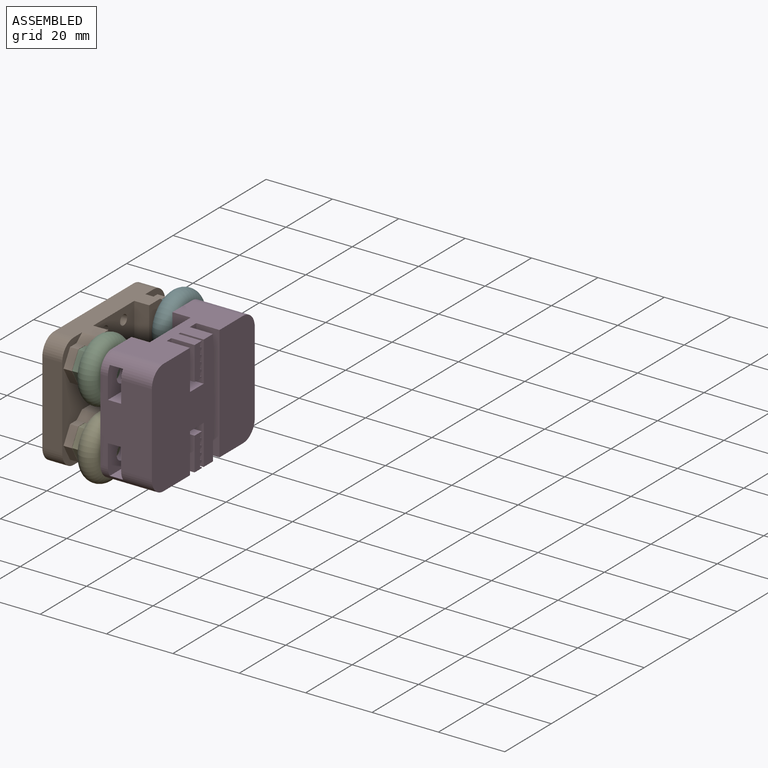
[diagram: assembled view]
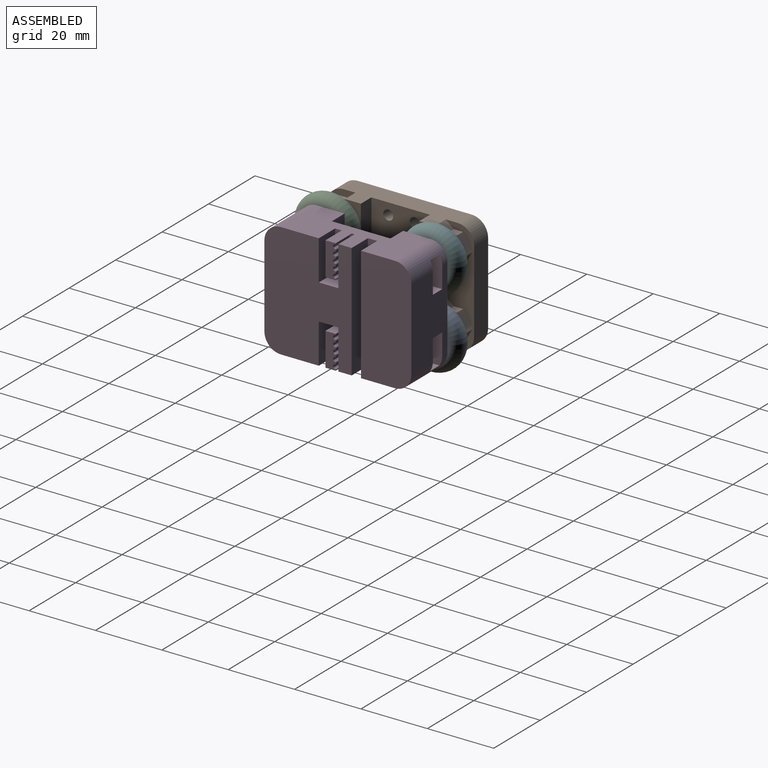
[diagram: assembled view, second angle]
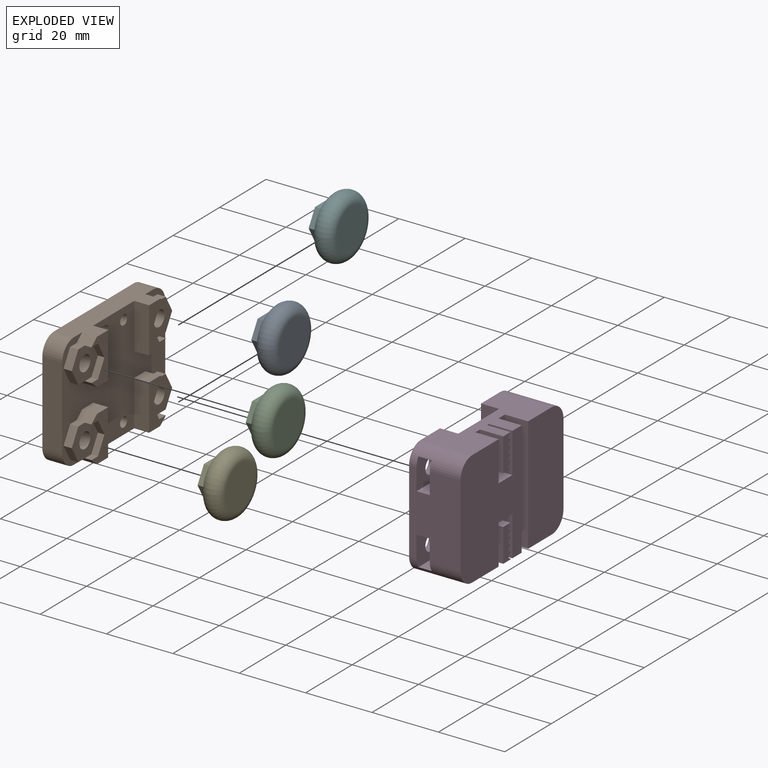
[diagram: exploded view]
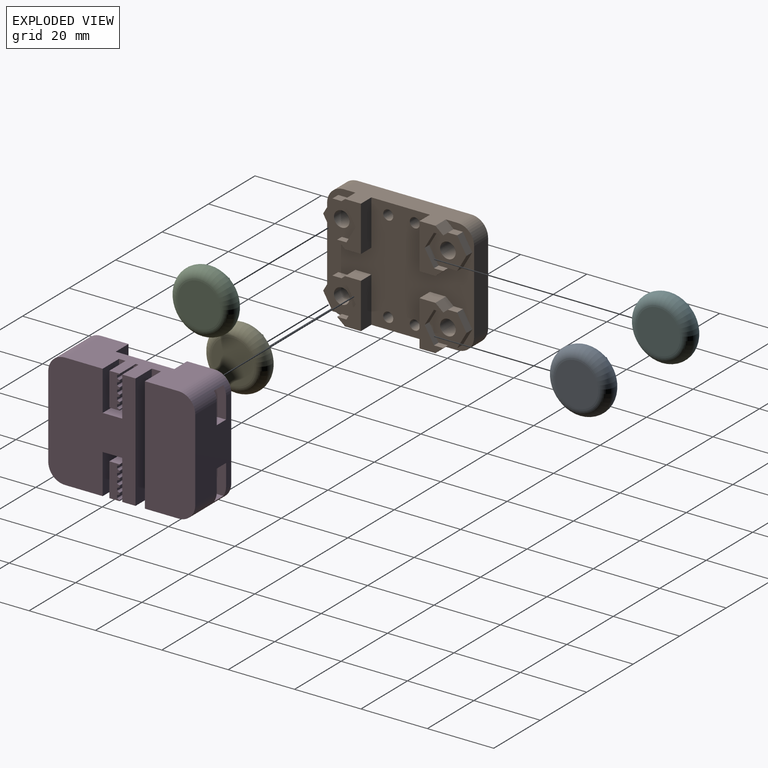
[diagram: exploded view, second angle]
ASSEMBLY  parts=6 mates=5
PART A: 10 faces, bbox 9x20.6x20.6 mm
  f0: plane 13x13mm, normal (-1,0,0), area 54.6mm2, adj f1,f3,f4,f5,f6,f7,f8
  f1: torus R=6.5mm, axis (1,0,0), area 498mm2, adj f0,f2
  f2: plane 13x13mm, normal (1,0,0), area 132.7mm2, adj f1
  f3: plane 4.75x3mm, normal (0,0.87,0.5), area 16.5mm2, adj f0,f4,f8,f9
  f4: plane 4.75x3mm, normal (0,0.87,-0.5), area 16.5mm2, adj f0,f3,f5,f9
  f5: plane 5.49x3mm, normal (0,0,-1), area 16.5mm2, adj f0,f4,f6,f9
  f6: plane 4.75x3mm, normal (0,-0.87,-0.5), area 16.5mm2, adj f0,f5,f7,f9
  f7: plane 4.75x3mm, normal (0,-0.87,0.5), area 16.5mm2, adj f0,f6,f8,f9
  f8: plane 5.49x3mm, normal (0,0,1), area 16.5mm2, adj f0,f3,f7,f9
  f9: plane 10.97x9.5mm, normal (-1,0,0), area 78.2mm2, adj f3,f4,f5,f6,f7,f8
PART B: 78 faces, bbox 10.5x44.3x34.7 mm
  f0: plane 44.3x34.7mm, normal (1,0,0), area 950.5mm2, adj f1,f4,f6,f7,f10,f11,f12,f17
  f1: cylinder r=1.5mm len=6mm, axis (1,0,0), area 56.5mm2, adj f0,f2
  f2: plane 44.3x34.7mm, normal (-1,0,0), area 1249.7mm2, adj f1,f3,f6,f7,f18,f24,f35,f41
  f3: cone r=4.35mm half-angle=45deg, axis (-1,0,0), area 59.5mm2, adj f2,f5
  f4: plane 2.8x2.5mm, normal (0,0,-1), area 7mm2, adj f0,f60,f61,f64
  f5: cylinder r=2.35mm len=6.5mm, axis (-1,0,0), area 96mm2, adj f3,f47
  f6: cylinder r=5mm len=6mm, axis (-1,0,0), area 47.1mm2, adj f0,f2,f35,f45
  f7: cylinder r=5mm len=6mm, axis (-1,0,0), area 47.1mm2, adj f0,f2,f18,f45
  f8: cylinder r=2.35mm len=6.5mm, axis (-1,0,0), area 96mm2, adj f23,f24
  f9: plane 13.7x7.17mm, normal (1,0,0), area 52.8mm2, adj f10,f11,f12,f13,f14,f15,f16,f17
  f10: plane 13.7x4.5mm, normal (0,1,0), area 61.6mm2, adj f0,f9,f11,f18
  f11: plane 4.8x4.5mm, normal (0,0,1), area 21.6mm2, adj f0,f9,f10,f12
  f12: plane 4.5x2.37mm, normal (0,-0.64,0.76), area 14mm2, adj f0,f9,f11,f13,f19
  f13: plane 2.8x2mm, normal (0,0,-1), area 5.6mm2, adj f9,f12,f14,f23
  f14: plane 4.85x2.8mm, normal (0,-0.87,-0.5), area 11.2mm2, adj f9,f13,f15,f23
  f15: plane 4.85x2.8mm, normal (0,-0.87,0.5), area 11.2mm2, adj f9,f14,f16,f23
  f16: plane 2.8x2mm, normal (0,0,1), area 5.6mm2, adj f9,f15,f17,f23
  f17: plane 4.5x2.37mm, normal (0,-0.64,-0.76), area 14mm2, adj f0,f9,f16,f18,f22
  f18: plane 34.3x10.5mm, normal (0,0,-1), area 249mm2, adj f0,f2,f7,f9,f10,f17,f44,f64
  f19: plane 2.8x2.5mm, normal (0,0,1), area 7mm2, adj f0,f12,f20,f23
  f20: plane 4.85x2.8mm, normal (0,-0.87,0.5), area 14mm2, adj f0,f19,f21,f23
  f21: plane 4.85x2.8mm, normal (0,-0.87,-0.5), area 14mm2, adj f0,f20,f22,f23
  f22: plane 2.8x2.5mm, normal (0,0,-1), area 7mm2, adj f0,f17,f21,f23
  f23: plane 11.2x9.7mm, normal (1,0,0), area 64.1mm2, adj f8,f13,f14,f15,f16,f19,f20,f21
  f24: cone r=4.35mm half-angle=45deg, axis (-1,0,0), area 59.5mm2, adj f2,f8
  f25: cylinder r=2.35mm len=6.5mm, axis (-1,0,0), area 96mm2, adj f40,f42
  f26: plane 13.7x7.17mm, normal (1,0,0), area 52.8mm2, adj f27,f28,f29,f30,f31,f32,f33,f34
  f27: plane 13.7x4.5mm, normal (0,1,0), area 61.6mm2, adj f0,f26,f28,f35
  f28: plane 4.8x4.5mm, normal (0,0,-1), area 21.6mm2, adj f0,f26,f27,f29
  f29: plane 4.5x2.37mm, normal (0,-0.64,-0.76), area 14mm2, adj f0,f26,f28,f30,f36
  f30: plane 2.8x2mm, normal (0,0,1), area 5.6mm2, adj f26,f29,f31,f40
  f31: plane 4.85x2.8mm, normal (0,-0.87,0.5), area 11.2mm2, adj f26,f30,f32,f40
  f32: plane 4.85x2.8mm, normal (0,-0.87,-0.5), area 11.2mm2, adj f26,f31,f33,f40
  f33: plane 2.8x2mm, normal (0,0,-1), area 5.6mm2, adj f26,f32,f34,f40
  f34: plane 4.5x2.37mm, normal (0,-0.64,0.76), area 14mm2, adj f0,f26,f33,f35,f39
  f35: plane 34.3x10.5mm, normal (0,0,1), area 249mm2, adj f0,f2,f6,f26,f27,f34,f43,f51
  f36: plane 2.8x2.5mm, normal (0,0,-1), area 7mm2, adj f0,f29,f37,f40
  f37: plane 4.85x2.8mm, normal (0,-0.87,-0.5), area 14mm2, adj f0,f36,f38,f40
  f38: plane 4.85x2.8mm, normal (0,-0.87,0.5), area 14mm2, adj f0,f37,f39,f40
  f39: plane 2.8x2.5mm, normal (0,0,1), area 7mm2, adj f0,f34,f38,f40
  f40: plane 11.2x9.7mm, normal (1,0,0), area 64.1mm2, adj f25,f30,f31,f32,f33,f36,f37,f38
  f41: plane 24.7x6mm, normal (0,-1,0), area 148.2mm2, adj f0,f2,f43,f44
  f42: cone r=4.35mm half-angle=45deg, axis (-1,0,0), area 59.5mm2, adj f2,f25
  f43: cylinder r=5mm len=6mm, axis (-1,0,0), area 47.1mm2, adj f0,f2,f35,f41
  f44: cylinder r=5mm len=6mm, axis (-1,0,0), area 47.1mm2, adj f0,f2,f18,f41
  f45: plane 24.7x6mm, normal (0,1,0), area 148.2mm2, adj f0,f2,f6,f7
  f46: plane 2.8x2.5mm, normal (0,0,1), area 7mm2, adj f0,f47,f48,f51
  f47: plane 11.2x9.7mm, normal (1,0,0), area 64.1mm2, adj f5,f46,f48,f49,f50,f52,f53,f54
  f48: plane 4.85x2.8mm, normal (0,0.87,0.5), area 14mm2, adj f0,f46,f47,f49
  f49: plane 4.85x2.8mm, normal (0,0.87,-0.5), area 14mm2, adj f0,f47,f48,f50
  f50: plane 2.8x2.5mm, normal (0,0,-1), area 7mm2, adj f0,f47,f49,f56
  f51: plane 4.5x2.37mm, normal (0,0.64,0.76), area 14mm2, adj f0,f35,f46,f52,f59
  f52: plane 2.8x2mm, normal (0,0,-1), area 5.6mm2, adj f47,f51,f53,f59
  f53: plane 4.85x2.8mm, normal (0,0.87,-0.5), area 11.2mm2, adj f47,f52,f54,f59
  f54: plane 4.85x2.8mm, normal (0,0.87,0.5), area 11.2mm2, adj f47,f53,f55,f59
  f55: plane 2.8x2mm, normal (0,0,1), area 5.6mm2, adj f47,f54,f56,f59
  f56: plane 4.5x2.37mm, normal (0,0.64,-0.76), area 14mm2, adj f0,f50,f55,f57,f59
  f57: plane 4.8x4.5mm, normal (0,0,-1), area 21.6mm2, adj f0,f56,f58,f59
  f58: plane 13.7x4.5mm, normal (0,-1,0), area 61.7mm2, adj f0,f35,f57,f59
  f59: plane 13.7x7.17mm, normal (1,0,0), area 52.8mm2, adj f35,f51,f52,f53,f54,f55,f56,f57
  f60: plane 11.2x9.7mm, normal (1,0,0), area 64.1mm2, adj f4,f61,f62,f63,f65,f66,f67,f68
  f61: plane 4.85x2.8mm, normal (0,0.87,-0.5), area 14mm2, adj f0,f4,f60,f62
  f62: plane 4.85x2.8mm, normal (0,0.87,0.5), area 14mm2, adj f0,f60,f61,f63
  f63: plane 2.8x2.5mm, normal (0,0,1), area 7mm2, adj f0,f60,f62,f69
  f64: plane 4.5x2.37mm, normal (0,0.64,-0.76), area 14mm2, adj f0,f4,f18,f65,f72
  f65: plane 2.8x2mm, normal (0,0,1), area 5.6mm2, adj f60,f64,f66,f72
  f66: plane 4.85x2.8mm, normal (0,0.87,0.5), area 11.2mm2, adj f60,f65,f67,f72
  f67: plane 4.85x2.8mm, normal (0,0.87,-0.5), area 11.2mm2, adj f60,f66,f68,f72
  f68: plane 2.8x2mm, normal (0,0,-1), area 5.6mm2, adj f60,f67,f69,f72
  f69: plane 4.5x2.37mm, normal (0,0.64,0.76), area 14mm2, adj f0,f63,f68,f70,f72
  f70: plane 4.8x4.5mm, normal (0,0,1), area 21.6mm2, adj f0,f69,f71,f72
  f71: plane 13.7x4.5mm, normal (0,-1,0), area 61.6mm2, adj f0,f18,f70,f72
  f72: plane 13.7x7.17mm, normal (1,0,0), area 52.8mm2, adj f18,f64,f65,f66,f67,f68,f69,f70
  f73: cylinder r=2.35mm len=6.5mm, axis (-1,0,0), area 96mm2, adj f60,f74
  f74: cone r=4.35mm half-angle=45deg, axis (-1,0,0), area 59.5mm2, adj f2,f73
  f75: cylinder r=1.5mm len=6mm, axis (1,0,0), area 56.5mm2, adj f0,f2
  f76: cylinder r=1.5mm len=6mm, axis (1,0,0), area 56.5mm2, adj f0,f2
  f77: cylinder r=1.5mm len=6mm, axis (1,0,0), area 56.5mm2, adj f0,f2
PART C: same geometry as A
PART D: 122 faces, bbox 15.5x44.3x34.7 mm
  f0: plane 4.6x4mm, normal (0,0.87,0.5), area 21.2mm2, adj f1,f45,f67,f121
  f1: plane 4.6x4mm, normal (0,0.87,-0.5), area 21.2mm2, adj f0,f46,f67,f121
  f2: plane 11.47x9.2mm, normal (1,0,0), area 75.2mm2, adj f6,f7,f51,f52,f55,f57,f65
  f3: cylinder r=5mm len=15.5mm, axis (1,0,0), area 110.1mm2, adj f4,f46,f58,f67,f73,f74,f121
  f4: plane 24.7x15.5mm, normal (0,1,0), area 331.3mm2, adj f3,f5,f42,f43,f45,f58,f67,f68
  f5: cylinder r=5mm len=15.5mm, axis (1,0,0), area 110.1mm2, adj f4,f43,f44,f58,f64,f68,f73
  f6: cylinder r=5mm len=15.5mm, axis (1,0,0), area 110.1mm2, adj f2,f7,f55,f56,f62,f74,f76
  f7: plane 24.7x15.5mm, normal (0,-1,0), area 331.3mm2, adj f2,f6,f8,f53,f54,f56,f57,f62
  f8: cylinder r=5mm len=15.5mm, axis (1,0,0), area 110.1mm2, adj f7,f53,f62,f64,f69,f76,f77
  f9: cylinder r=1.41mm len=7mm, axis (-1,0,0), area 4.8mm2, adj f11,f33,f61,f87
  f10: cylinder r=1.41mm len=7mm, axis (-1,0,0), area 4.8mm2, adj f11,f23,f61,f87
  f11: plane 7x0.75mm, normal (0,1,0), area 5.2mm2, adj f9,f10,f61,f87
  f12: cylinder r=1.41mm len=7mm, axis (-1,0,0), area 4.8mm2, adj f13,f34,f61,f87
  f13: plane 7x0.75mm, normal (0,1,0), area 5.2mm2, adj f12,f14,f61,f87
  f14: cylinder r=1.41mm len=7mm, axis (-1,0,0), area 4.8mm2, adj f13,f30,f61,f87
  f15: cylinder r=1.41mm len=7mm, axis (-1,0,0), area 4.8mm2, adj f18,f35,f61,f87
  f16: cylinder r=1.41mm len=7mm, axis (-1,0,0), area 4.8mm2, adj f17,f37,f61,f87
  f17: plane 7x0.75mm, normal (0,1,0), area 5.2mm2, adj f16,f25,f61,f87
  f18: plane 7x0.75mm, normal (0,1,0), area 5.2mm2, adj f15,f31,f61,f87
  f19: cylinder r=1.41mm len=7mm, axis (-1,0,0), area 4.8mm2, adj f20,f38,f61,f87
  f20: plane 7x0.75mm, normal (0,1,0), area 5.2mm2, adj f19,f28,f61,f87
  f21: plane 12.02x7mm, normal (0,1,0), area 84.2mm2, adj f40,f62,f74,f87
  f22: plane 7x0.26mm, normal (0,1,0), area 1.8mm2, adj f32,f34,f61,f87
  f23: cylinder r=0.2mm len=7mm, axis (-1,0,0), area 1.9mm2, adj f10,f61,f86,f87
  f24: plane 7x0.26mm, normal (0,1,0), area 1.8mm2, adj f29,f35,f61,f87
  f25: cylinder r=1.41mm len=7mm, axis (-1,0,0), area 4.8mm2, adj f17,f26,f61,f87
  f26: cylinder r=0.2mm len=7mm, axis (-1,0,0), area 1.9mm2, adj f25,f27,f61,f87
  f27: plane 7x0.26mm, normal (0,1,0), area 1.8mm2, adj f26,f38,f61,f87
  f28: cylinder r=1.41mm len=7mm, axis (-1,0,0), area 4.8mm2, adj f20,f29,f61,f87
  f29: cylinder r=0.2mm len=7mm, axis (-1,0,0), area 1.9mm2, adj f24,f28,f61,f87
  f30: cylinder r=0.2mm len=7mm, axis (-1,0,0), area 1.9mm2, adj f14,f39,f61,f87
  f31: cylinder r=1.41mm len=7mm, axis (-1,0,0), area 4.8mm2, adj f18,f32,f61,f87
  f32: cylinder r=0.2mm len=7mm, axis (-1,0,0), area 1.9mm2, adj f22,f31,f61,f87
  f33: cylinder r=0.2mm len=7mm, axis (-1,0,0), area 1.9mm2, adj f9,f39,f61,f87
  f34: cylinder r=0.2mm len=7mm, axis (-1,0,0), area 1.9mm2, adj f12,f22,f61,f87
  f35: cylinder r=0.2mm len=7mm, axis (-1,0,0), area 1.9mm2, adj f15,f24,f61,f87
  f36: plane 7x0.13mm, normal (0,1,0), area 0.9mm2, adj f37,f61,f74,f87
  f37: cylinder r=0.2mm len=7mm, axis (-1,0,0), area 1.9mm2, adj f16,f36,f61,f87
  f38: cylinder r=0.2mm len=7mm, axis (-1,0,0), area 1.9mm2, adj f19,f27,f61,f87
  f39: plane 7x0.26mm, normal (0,1,0), area 1.8mm2, adj f30,f33,f61,f87
  f40: plane 7x5.91mm, normal (0,0,1), area 41.3mm2, adj f21,f62,f78,f87
  f41: plane 10.02x7mm, normal (0,-1,0), area 70.1mm2, adj f61,f74,f85,f87
  f42: plane 8.82x4mm, normal (0,0,-1), area 35.3mm2, adj f4,f43,f47,f68
  f43: plane 11.47x9.2mm, normal (-1,0,0), area 92.6mm2, adj f4,f5,f42,f44,f47,f48
  f44: plane 7.99x4mm, normal (0,0,1), area 32mm2, adj f5,f43,f48,f68
  f45: plane 8.82x4mm, normal (0,0,1), area 35.3mm2, adj f0,f4,f67,f121
  f46: plane 7.99x4mm, normal (0,0,-1), area 32mm2, adj f1,f3,f67,f121
  f47: plane 4.6x4mm, normal (0,0.87,-0.5), area 21.2mm2, adj f42,f43,f48,f68
  f48: plane 4.6x4mm, normal (0,0.87,0.5), area 21.2mm2, adj f43,f44,f47,f68
  f49: plane 4.6x4mm, normal (0,-0.87,0.5), area 21.2mm2, adj f50,f53,f69,f77
  f50: plane 4.6x4mm, normal (0,-0.87,-0.5), area 21.2mm2, adj f49,f53,f54,f77
  f51: plane 4.6x4mm, normal (0,-0.87,0.5), area 21.2mm2, adj f2,f52,f56,f57
  f52: plane 4.6x4mm, normal (0,-0.87,-0.5), area 21.2mm2, adj f2,f51,f55,f56
  f53: plane 11.47x9.2mm, normal (-1,0,0), area 92.6mm2, adj f7,f8,f49,f50,f54,f69
  f54: plane 8.82x4mm, normal (0,0,-1), area 35.3mm2, adj f7,f50,f53,f77
  f55: plane 7.99x4mm, normal (0,0,-1), area 32mm2, adj f2,f6,f52,f56
  f56: plane 11.47x9.2mm, normal (-1,0,0), area 92.6mm2, adj f6,f7,f51,f52,f55,f57
  f57: plane 8.82x4mm, normal (0,0,1), area 35.3mm2, adj f2,f7,f51,f56
  f58: plane 34.7x15.2mm, normal (1,0,0), area 516.7mm2, adj f3,f4,f5,f64,f74,f82
  f59: plane 12.02x5.91mm, normal (1,0,0), area 44.5mm2, adj f64,f79,f80,f81,f88,f89,f90,f91
  f60: plane 10.02x3.1mm, normal (1,0,0), area 26.6mm2, adj f64,f81,f88,f89,f90,f91,f92,f93
  f61: plane 10.02x3.1mm, normal (1,0,0), area 26.6mm2, adj f9,f10,f11,f12,f13,f14,f15,f16
  f62: plane 34.7x26.3mm, normal (1,0,0), area 759.9mm2, adj f6,f7,f8,f21,f40,f64,f74,f78
  f63: plane 34.7x17.64mm, normal (-1,0,0), area 612.1mm2, adj f64,f70,f74,f75
  f64: plane 34.3x15.5mm, normal (0,0,-1), area 395.4mm2, adj f5,f8,f58,f59,f60,f62,f63,f70
  f65: cylinder r=2.35mm len=4.7mm, axis (1,0,0), area 33.2mm2, adj f2,f76
  f66: cylinder r=2.35mm len=4.7mm, axis (1,0,0), area 33.2mm2, adj f76,f77
  f67: plane 11.47x9.2mm, normal (1,0,0), area 75.2mm2, adj f0,f1,f3,f4,f45,f46,f72
  f68: plane 11.47x9.2mm, normal (1,0,0), area 75.2mm2, adj f4,f5,f42,f44,f47,f48,f71
  f69: plane 7.99x4mm, normal (0,0,1), area 32mm2, adj f8,f49,f53,f77
  f70: plane 34.7x5.5mm, normal (0,-1,0), area 190.8mm2, adj f63,f64,f73,f74
  f71: cylinder r=2.35mm len=4.7mm, axis (1,0,0), area 33.2mm2, adj f68,f73
  f72: cylinder r=2.35mm len=4.7mm, axis (1,0,0), area 33.2mm2, adj f67,f73
  f73: plane 34.7x13.33mm, normal (-1,0,0), area 417.1mm2, adj f3,f4,f5,f64,f70,f71,f72,f74
  f74: plane 34.3x15.5mm, normal (0,0,1), area 395.4mm2, adj f3,f6,f21,f36,f41,f58,f61,f62
  f75: plane 34.7x5.5mm, normal (0,1,0), area 190.8mm2, adj f63,f64,f74,f76
  f76: plane 34.7x13.33mm, normal (-1,0,0), area 417.1mm2, adj f6,f7,f8,f64,f65,f66,f74,f75
  f77: plane 11.47x9.2mm, normal (1,0,0), area 75.2mm2, adj f7,f8,f49,f50,f54,f66,f69
  f78: plane 12.02x7mm, normal (0,-1,0), area 84.2mm2, adj f40,f62,f74,f87
  f79: plane 12.02x7mm, normal (0,-1,0), area 84.2mm2, adj f59,f62,f64,f80
  f80: plane 7x5.91mm, normal (0,0,-1), area 41.3mm2, adj f59,f62,f79,f120
  f81: plane 7x0.13mm, normal (0,1,0), area 0.9mm2, adj f59,f60,f64,f104
  f82: plane 34.7x7mm, normal (0,-1,0), area 242.9mm2, adj f58,f64,f74,f84
  f83: plane 34.7x7mm, normal (0,1,0), area 242.9mm2, adj f62,f64,f74,f84
  f84: plane 34.7x2.8mm, normal (1,0,0), area 97.2mm2, adj f64,f74,f82,f83
  f85: plane 7x3.1mm, normal (0,0,-1), area 21.7mm2, adj f41,f61,f86,f87
  f86: plane 7x0.15mm, normal (0,1,0), area 1.1mm2, adj f23,f61,f85,f87
  f87: plane 12.02x5.91mm, normal (1,0,0), area 44.5mm2, adj f9,f10,f11,f12,f13,f14,f15,f16
  f88: plane 7x0.75mm, normal (0,1,0), area 5.2mm2, adj f59,f60,f89,f117
  f89: cylinder r=1.41mm len=7mm, axis (-1,0,0), area 4.8mm2, adj f59,f60,f88,f90
  f90: cylinder r=0.2mm len=7mm, axis (-1,0,0), area 1.9mm2, adj f59,f60,f89,f91
  f91: plane 7x0.26mm, normal (0,1,0), area 1.8mm2, adj f59,f60,f90,f92
  f92: cylinder r=0.2mm len=7mm, axis (-1,0,0), area 1.9mm2, adj f59,f60,f91,f93
  f93: cylinder r=1.41mm len=7mm, axis (-1,0,0), area 4.8mm2, adj f59,f60,f92,f94
  f94: plane 7x0.75mm, normal (0,1,0), area 5.2mm2, adj f59,f60,f93,f95
  f95: cylinder r=1.41mm len=7mm, axis (-1,0,0), area 4.8mm2, adj f59,f60,f94,f96
  f96: cylinder r=0.2mm len=7mm, axis (-1,0,0), area 1.9mm2, adj f59,f60,f95,f97
  f97: plane 7x0.26mm, normal (0,1,0), area 1.8mm2, adj f59,f60,f96,f98
  f98: cylinder r=0.2mm len=7mm, axis (-1,0,0), area 1.9mm2, adj f59,f60,f97,f99
  f99: cylinder r=1.41mm len=7mm, axis (-1,0,0), area 4.8mm2, adj f59,f60,f98,f100
  f100: plane 7x0.75mm, normal (0,1,0), area 5.2mm2, adj f59,f60,f99,f101
  f101: cylinder r=1.41mm len=7mm, axis (-1,0,0), area 4.8mm2, adj f59,f60,f100,f102
  f102: cylinder r=0.2mm len=7mm, axis (-1,0,0), area 1.9mm2, adj f59,f60,f101,f103
  f103: plane 7x0.15mm, normal (0,1,0), area 1.1mm2, adj f59,f60,f102,f118
  f104: cylinder r=0.2mm len=7mm, axis (-1,0,0), area 1.9mm2, adj f59,f60,f81,f105
  f105: cylinder r=1.41mm len=7mm, axis (-1,0,0), area 4.8mm2, adj f59,f60,f104,f106
  f106: plane 7x0.75mm, normal (0,1,0), area 5.2mm2, adj f59,f60,f105,f107
  f107: cylinder r=1.41mm len=7mm, axis (-1,0,0), area 4.8mm2, adj f59,f60,f106,f108
  f108: cylinder r=0.2mm len=7mm, axis (-1,0,0), area 1.9mm2, adj f59,f60,f107,f109
  f109: plane 7x0.26mm, normal (0,1,0), area 1.8mm2, adj f59,f60,f108,f110
  f110: cylinder r=0.2mm len=7mm, axis (-1,0,0), area 1.9mm2, adj f59,f60,f109,f111
  f111: cylinder r=1.41mm len=7mm, axis (-1,0,0), area 4.8mm2, adj f59,f60,f110,f112
  f112: plane 7x0.75mm, normal (0,1,0), area 5.2mm2, adj f59,f60,f111,f113
  f113: cylinder r=1.41mm len=7mm, axis (-1,0,0), area 4.8mm2, adj f59,f60,f112,f114
  f114: cylinder r=0.2mm len=7mm, axis (-1,0,0), area 1.9mm2, adj f59,f60,f113,f115
  f115: plane 7x0.26mm, normal (0,1,0), area 1.8mm2, adj f59,f60,f114,f116
  f116: cylinder r=0.2mm len=7mm, axis (-1,0,0), area 1.9mm2, adj f59,f60,f115,f117
  f117: cylinder r=1.41mm len=7mm, axis (-1,0,0), area 4.8mm2, adj f59,f60,f88,f116
  f118: plane 7x3.1mm, normal (0,0,1), area 21.7mm2, adj f59,f60,f103,f119
  f119: plane 10.02x7mm, normal (0,-1,0), area 70.1mm2, adj f59,f60,f64,f118
  f120: plane 12.02x7mm, normal (0,1,0), area 84.2mm2, adj f59,f62,f64,f80
  f121: plane 11.47x9.2mm, normal (-1,0,0), area 92.6mm2, adj f0,f1,f3,f4,f45,f46
PART E: same geometry as A
PART F: same geometry as A
PLACE A t=(-10.15,39.55,-20.9)mm
PLACE B t=(-10.15,7.21,0.1)mm
PLACE C t=(-10.15,7.57,0.1)mm
PLACE D t=(-11.35,7.21,0.1)mm
PLACE E t=(-10.15,7.57,-20.9)mm
PLACE F t=(-10.15,39.55,0.1)mm
MATE fastened F.f1 <-> B.f3  axis (-1,0,0) through (-16.15,22.85,37.6)mm
MATE fastened E.f1 <-> B.f8  axis (-1,0,0) through (-16.15,-9.13,16.6)mm
MATE fastened D.f72 <-> F.f1  axis (-1,0,0) through (-7.15,22.85,37.6)mm
MATE fastened C.f1 <-> B.f25  axis (-1,0,0) through (-16.15,-9.13,37.6)mm
MATE fastened A.f1 <-> B.f73  axis (-1,0,0) through (-16.15,22.85,16.6)mm
